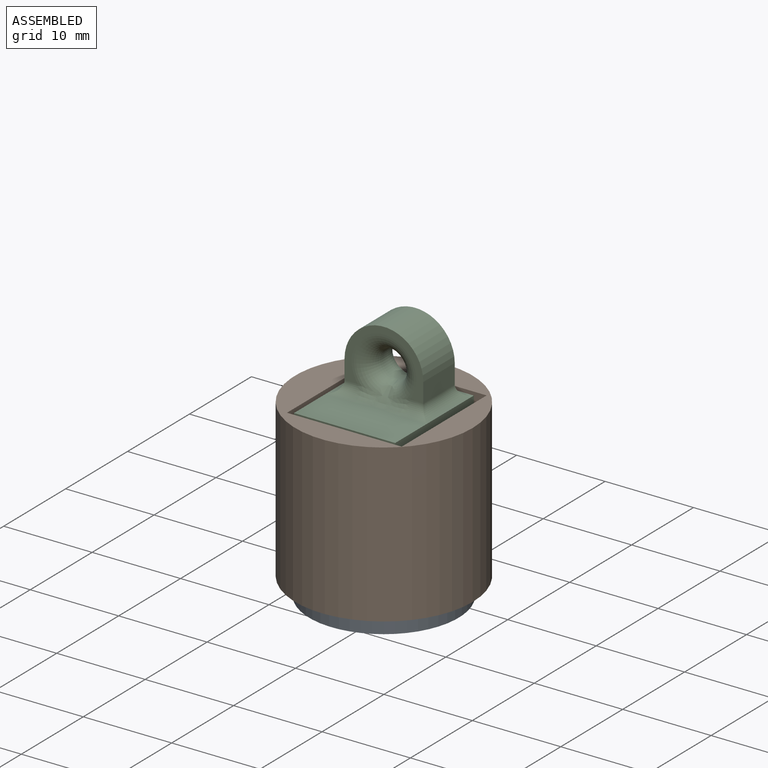
[diagram: assembled view]
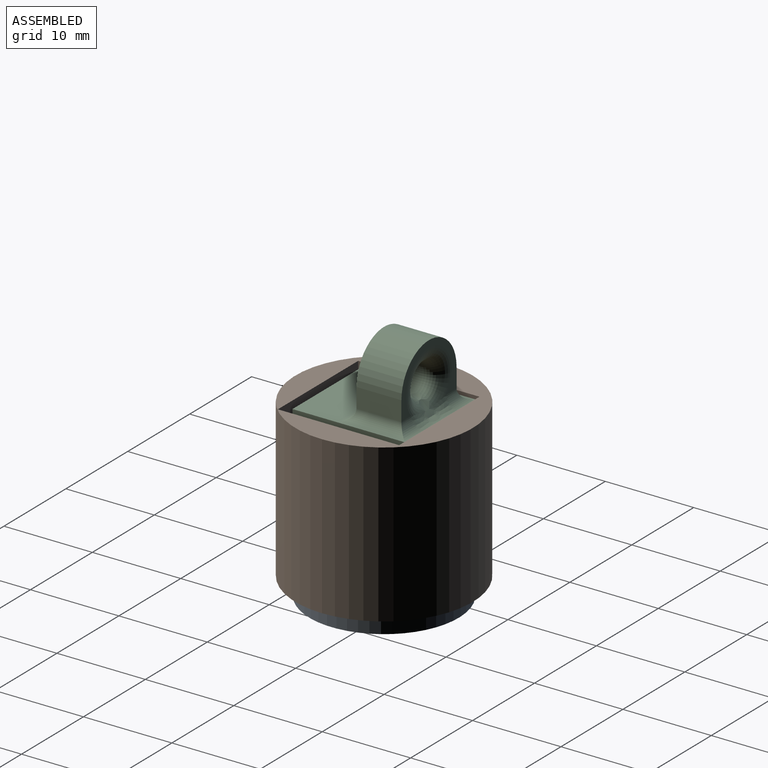
[diagram: assembled view, second angle]
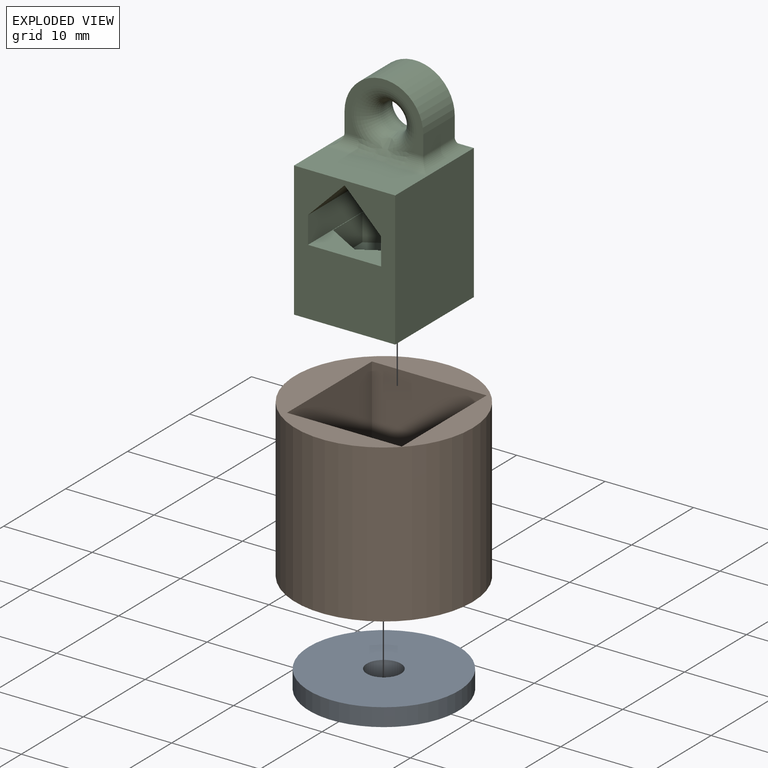
[diagram: exploded view]
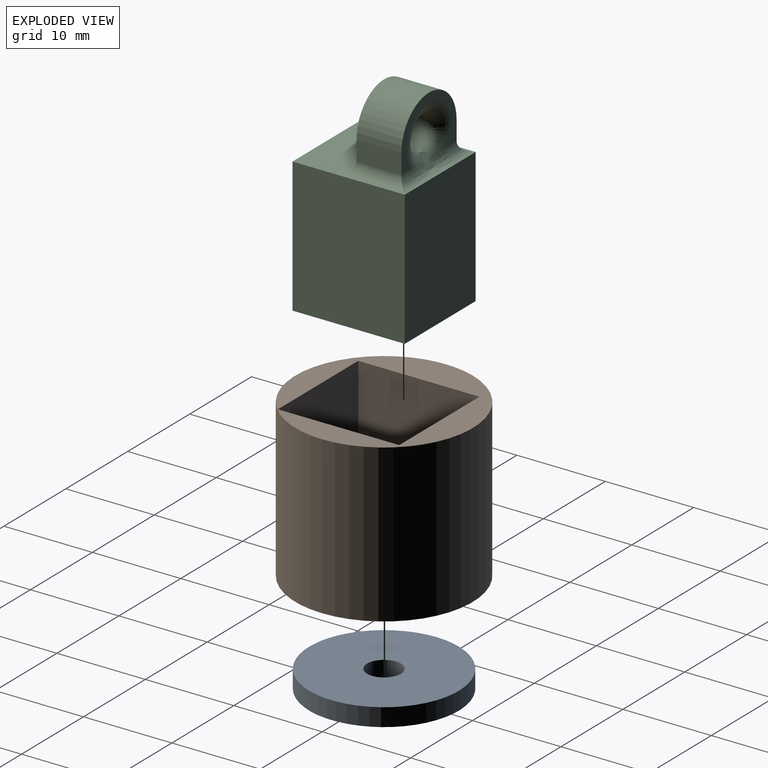
[diagram: exploded view, second angle]
ASSEMBLY  parts=3 mates=2
PART A: 4 faces, bbox 16.9x16.9x2 mm
  f0: cylinder r=8.46mm len=16.92mm, axis (0,0,1), area 108mm2, adj f1,f2
  f1: plane 16.92x16.92mm, normal (0,0,-1), area 213mm2, adj f0,f3
  f2: plane 16.92x16.92mm, normal (0,0,1), area 213mm2, adj f0,f3
  f3: cylinder r=1.93mm len=3.86mm, axis (0,0,-1), area 24.6mm2, adj f1,f2
PART B: 9 faces, bbox 20.1x20.1x17.8 mm
  f0: plane 20.07x20.07mm, normal (0,0,1), area 138.3mm2, adj f2,f4,f5,f6,f7
  f1: cylinder r=1.93mm len=3.86mm, axis (0,0,-1), area 27.7mm2, adj f3,f8
  f2: cylinder r=10.03mm len=20.07mm, axis (0,0,1), area 1120.8mm2, adj f0,f3
  f3: plane 20.07x20.07mm, normal (0,0,-1), area 304.5mm2, adj f1,f2
  f4: plane 15.49x12.97mm, normal (0,-1,0), area 201mm2, adj f0,f5,f7,f8
  f5: plane 15.49x13.72mm, normal (1,0,0), area 212.5mm2, adj f0,f4,f6,f8
  f6: plane 15.49x12.97mm, normal (0,1,0), area 201mm2, adj f0,f5,f7,f8
  f7: plane 15.49x13.72mm, normal (-1,0,0), area 212.5mm2, adj f0,f4,f6,f8
  f8: plane 13.72x12.97mm, normal (0,0,1), area 166.2mm2, adj f1,f4,f5,f6,f7
PART C: 43 faces, bbox 11.4x12.7x24.2 mm
  f0: plane 11.05x8.28mm, normal (0,0,1), area 33.6mm2, adj f26,f31,f32,f33,f36,f37,f38,f39
  f1: cylinder r=1.93mm len=4.51mm, axis (0,0,-1), area 54.7mm2, adj f30,f42
  f2: plane 5.85x0.33mm, normal (0,0,1), area 1mm2, adj f14,f15,f17,f28
  f3: plane 11.45x5.41mm, normal (0,0,1), area 59.1mm2, adj f20,f22,f23,f24,f25,f26,f27,f29
  f4: plane 5.08x2.2mm, normal (1,0,0), area 11.2mm2, adj f5,f8,f9,f21
  f5: cylinder r=4.45mm len=8.91mm, axis (0,-1,0), area 71.1mm2, adj f4,f6,f8,f9
  f6: plane 5.08x2.2mm, normal (-1,0,0), area 11.2mm2, adj f5,f8,f9,f18
  f7: cylinder r=1.63mm len=3.26mm, axis (0,-1,0), area 10.4mm2, adj f10,f11,f12,f13
  f8: plane 8.91x6.65mm, normal (0,1,0), area 14.6mm2, adj f4,f5,f6,f12,f16,f19
  f9: plane 8.91x6.65mm, normal (0,-1,0), area 14.6mm2, adj f4,f5,f6,f10,f20,f23
  f10: torus R=3.66mm, axis (0,-1,0), area 40.8mm2, adj f7,f9,f11,f22,f25
  f11: bspline ~3.08x2.18mm, area 2.9mm2, adj f7,f10,f24
  f12: torus R=3.66mm, axis (0,-1,0), area 40.8mm2, adj f7,f8,f13,f14,f17
  f13: bspline ~3.08x2.18mm, area 2.9mm2, adj f7,f12,f15
  f14: bspline ~2.9x1.48mm, area 3.6mm2, adj f2,f12,f15,f16
  f15: bspline ~2.09x1.21mm, area 2.4mm2, adj f2,f13,f14,f17
  f16: cylinder r=1.27mm len=2.8mm, axis (-1,0,0), area 4.3mm2, adj f8,f14,f18,f28
  f17: bspline ~3.76x1.5mm, area 3.6mm2, adj f2,f12,f15,f19
  f18: cylinder r=1.27mm len=7.62mm, axis (0,1,0), area 12.7mm2, adj f6,f16,f20,f27
  f19: cylinder r=1.27mm len=2.8mm, axis (-1,0,0), area 4.3mm2, adj f8,f17,f21,f28
  f20: cylinder r=1.27mm len=2.8mm, axis (1,0,0), area 4.3mm2, adj f3,f9,f18,f22
  f21: cylinder r=1.27mm len=7.62mm, axis (0,-1,0), area 12.7mm2, adj f4,f19,f23,f29
  f22: bspline ~2.9x1.48mm, area 3.6mm2, adj f3,f10,f20,f24
  f23: cylinder r=1.27mm len=2.8mm, axis (1,0,0), area 4.3mm2, adj f3,f9,f21,f25
  f24: bspline ~2.09x1.21mm, area 2.4mm2, adj f3,f11,f22,f25
  f25: bspline ~3.76x1.5mm, area 3.6mm2, adj f3,f10,f23,f24
  f26: plane 15.24x11.45mm, normal (0,-1,0), area 132.1mm2, adj f0,f3,f27,f29,f30,f32,f33,f34
  f27: plane 15.24x12.7mm, normal (-1,0,0), area 193.5mm2, adj f3,f18,f26,f28,f30
  f28: plane 15.24x11.45mm, normal (0,1,0), area 174.5mm2, adj f2,f16,f19,f27,f29,f30
  f29: plane 15.24x12.7mm, normal (1,0,0), area 193.5mm2, adj f3,f21,f26,f28,f30
  f30: plane 12.7x11.45mm, normal (0,0,-1), area 133.7mm2, adj f1,f26,f27,f28,f29
  f31: plane 10.24x8.28mm, normal (0,-1,0), area 42.6mm2, adj f0,f32,f33,f34,f35,f37,f38,f42
  f32: plane 11.05x3.05mm, normal (-1,0,0), area 33.7mm2, adj f0,f26,f31,f34
  f33: plane 11.05x3.05mm, normal (1,0,0), area 33.7mm2, adj f0,f26,f31,f35
  f34: plane 11.05x4.14mm, normal (-0.71,0,-0.71), area 64.7mm2, adj f26,f31,f32,f35
  f35: plane 11.05x4.14mm, normal (0.71,0,-0.71), area 64.7mm2, adj f26,f31,f33,f34
  f36: plane 4.72x3.05mm, normal (-1,0,0), area 14.4mm2, adj f0,f37,f41,f42
  f37: plane 4.05x3.05mm, normal (-0.5,-0.87,0), area 14.3mm2, adj f0,f31,f36,f42
  f38: plane 4.05x3.05mm, normal (0.5,-0.87,0), area 14.3mm2, adj f0,f31,f39,f42
  f39: plane 4.72x3.05mm, normal (1,0,0), area 14.4mm2, adj f0,f38,f40,f42
  f40: plane 4.09x3.05mm, normal (0.5,0.87,0), area 14.4mm2, adj f0,f39,f41,f42
  f41: plane 4.09x3.05mm, normal (-0.5,0.87,0), area 14.4mm2, adj f0,f36,f40,f42
  f42: plane 9.42x8.18mm, normal (0,0,1), area 46.2mm2, adj f1,f31,f36,f37,f38,f39,f40,f41
PLACE A at identity
PLACE B at identity fixed
PLACE C t=(0,0,-38.35)mm
MATE fastened C.f1 <-> B.f1  axis (0,0,-1) through (0,0,-53.59)mm
MATE fastened B.f1 <-> A.f3  axis (0,0,-1) through (0,0,-55.88)mm
